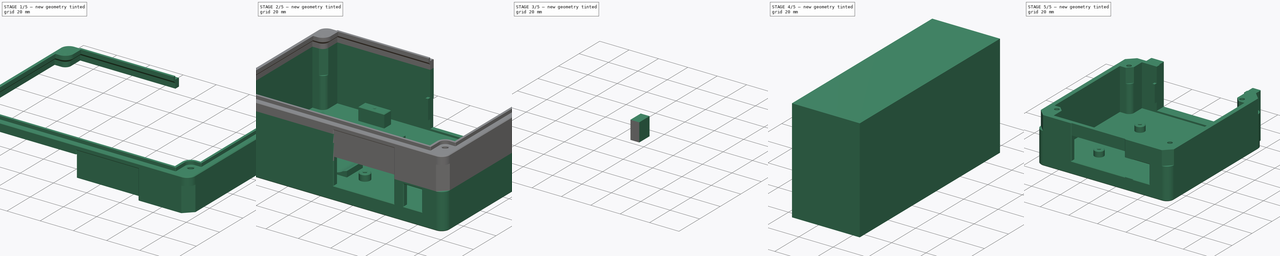
[diagram: build sequence overview — one tinted view per stage of 5, left to right]
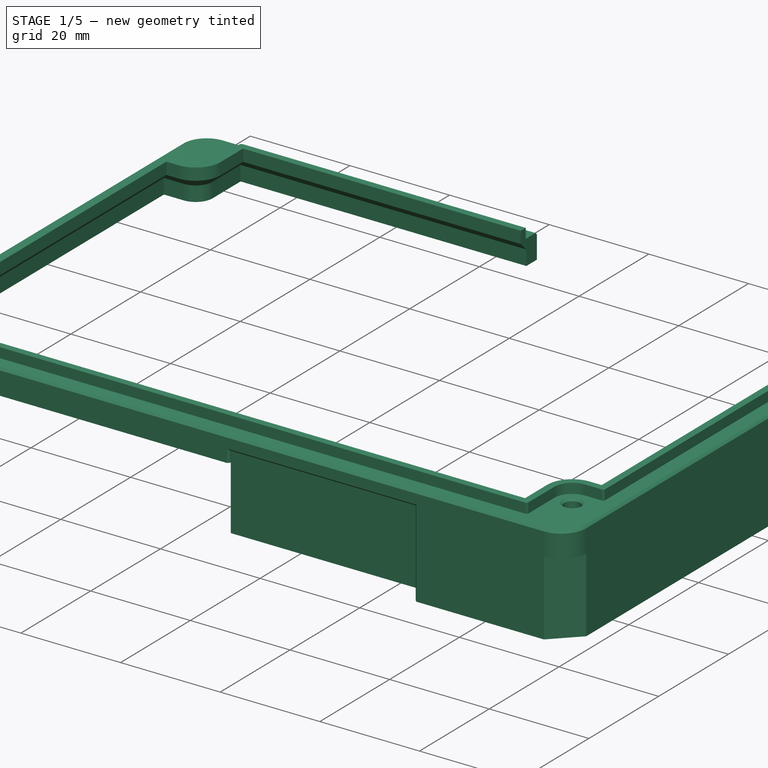
[diagram: stage 1 of 5 — iso view after this stage's code; geometry added in this stage tinted green]
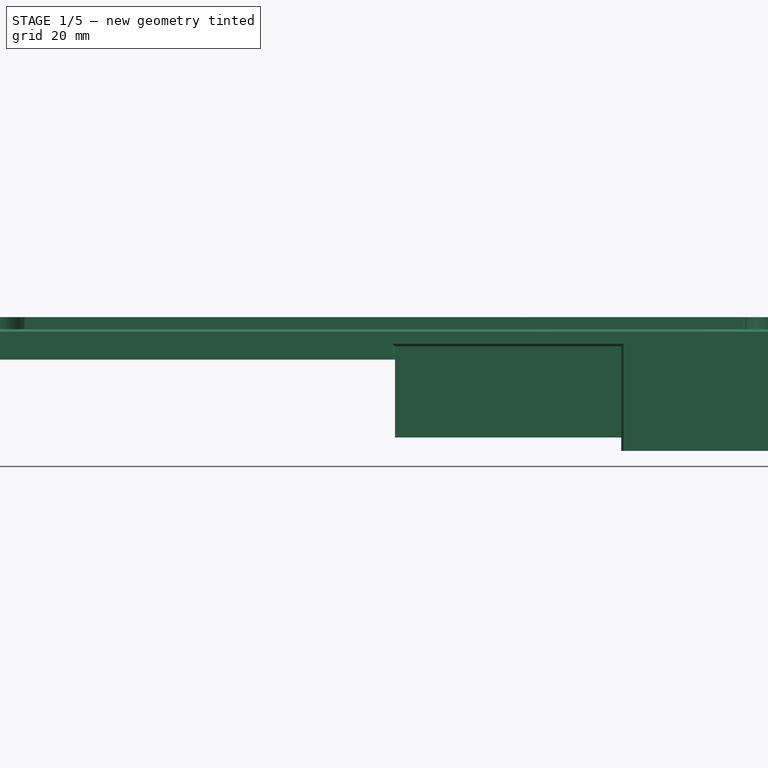
[diagram: stage 1 of 5 — front view after this stage's code; geometry added in this stage tinted green]
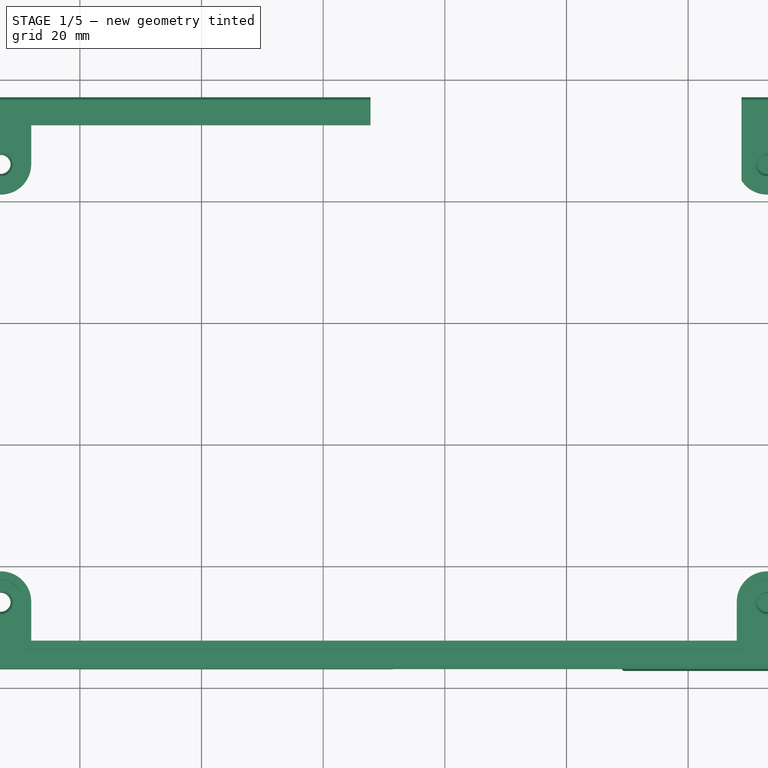
[diagram: stage 1 of 5 — top view after this stage's code; geometry added in this stage tinted green]
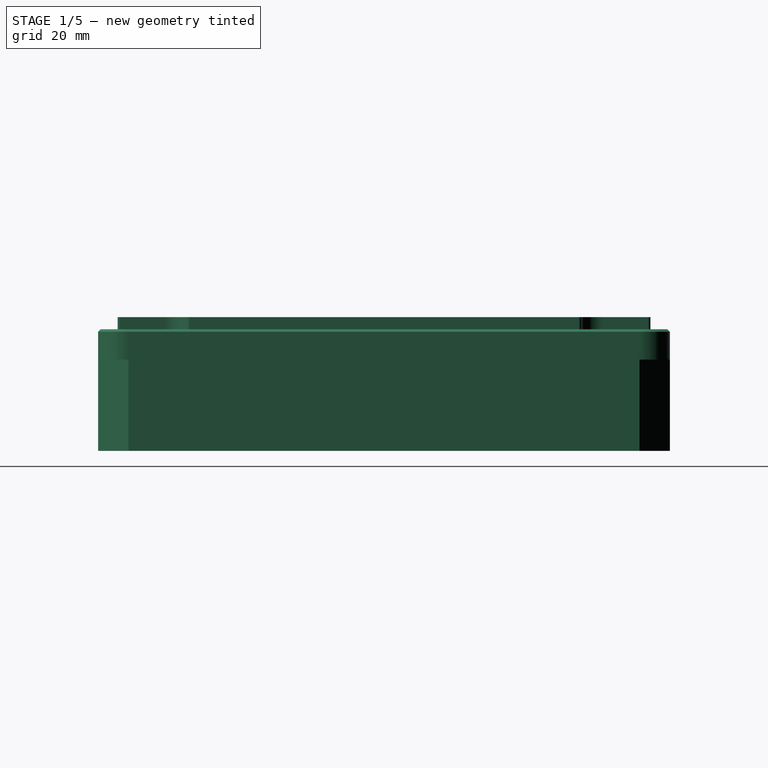
[diagram: stage 1 of 5 — right view after this stage's code; geometry added in this stage tinted green]
FCSTD DOCUMENT  (FreeCAD 0.18R16146 (Git))
Label: box Down
License: All rights reserved
LicenseURL: http://en.wikipedia.org/wiki/All_rights_reserved
objects: Sketcher::SketchObject×14, Part::Extrusion×13, Part::Fuse×8, Part::Cut×8, Part::FeaturePython×3, Part::Feature×1, Part::MultiCommon×1, Part::Chamfer×1, App::DocumentObjectGroup×1
note: 49 computed .brp shape members not serialized (recipe doc carries the construction recipe); baked Part::Feature solids carry a one-line shape summary decoded from their .brp

FEATURE [Part::Feature] Olinuxino_Lime2_SlimCase_v001_Bottom_v001001001_solid  label="Olinuxino_Lime2_SlimCase_v001_Bottom_v001002 (Solid)"
  shape: bbox 140 x 94 x 29 mm, 5554 faces (baked)
FEATURE [Part::Fuse] Fusion
FEATURE [Sketcher::SketchObject] Sketch
  MapMode = 5
  Placement = pos=(0,0,14.8) rot=(0,0,1;0rad)
  Support = -> [Cut001]
  sketch-geometry (4):
    g0: LineSegment StartX=11.2293 StartY=-3.06914 StartZ=0 EndX=72.2293 EndY=-3.06914 EndZ=0
    g1: LineSegment StartX=72.2293 StartY=-3.06914 StartZ=0 EndX=72.2293 EndY=30.102 EndZ=0
    g2: LineSegment StartX=72.2293 StartY=30.102 StartZ=0 EndX=11.2293 EndY=30.102 EndZ=0
    g3: LineSegment StartX=11.2293 StartY=30.102 StartZ=0 EndX=11.2293 EndY=-3.06914 EndZ=0
  constraints (7):
    c: Coincident(g0,g1)
    c: Coincident(g1,g2)
    c: Coincident(g2,g3)
    c: Coincident(g3,g0)
    c: Horizontal(g2)
    c: Vertical(g1)
    c: Vertical(g3)
FEATURE [Part::Extrusion] Extrude
  Base = -> Sketch
  Dir = (0,-20,0)
  DirMode = 0
  FaceMakerClass = Part::FaceMakerBullseye
  LengthFwd = 22
  LengthRev = 0
  Solid = true
  Symmetric = false
FEATURE [Part::Cut] Cut
  Base = -> Olinuxino_Lime2_SlimCase_v001_Bottom_v001001001_solid
  Tool = -> Extrude
FEATURE [Part::Cut] Cut001
  Base = -> Cut
FEATURE [Part::MultiCommon] Common
  Placement = pos=(0,0,15) rot=(0,0,1;0rad)
  Shapes = -> [Cut]
FEATURE [Sketcher::SketchObject] Sketch001
  ExternalGeometry = -> [Cut001]
  MapMode = 5
  Placement = pos=(0,0,14.8) rot=(0,0,1;0rad)
  Support = -> [Cut001]
  sketch-geometry (17):
    g0: LineSegment StartX=-31 StartY=-14.19 StartZ=0 EndX=-31 EndY=-16.79 EndZ=0
    g1: LineSegment StartX=-31 StartY=-16.79 StartZ=0 EndX=-30.6 EndY=-17.19 EndZ=0
    g2: LineSegment StartX=-30.6 StartY=-17.19 StartZ=0 EndX=-5 EndY=-17.19 EndZ=0
    g3: LineSegment StartX=-5 StartY=-17.19 StartZ=0 EndX=-2.7e-15 EndY=-12.19 EndZ=0
    g4: LineSegment StartX=-2.7e-15 StartY=-12.19 StartZ=0 EndX=1.5e-15 EndY=71.81 EndZ=0
    g5: LineSegment StartX=1.5e-15 StartY=71.81 StartZ=0 EndX=-5 EndY=76.81 EndZ=0
    g6: LineSegment StartX=-5 StartY=76.81 StartZ=0 EndX=-11.2293 EndY=76.81 EndZ=0
    g7: LineSegment StartX=-11.2293 StartY=76.81 StartZ=0 EndX=-11.2293 EndY=73.81 EndZ=0
    g8: LineSegment StartX=-11.2293 StartY=73.81 StartZ=0 EndX=-10.4 EndY=73.81 EndZ=0
    g9: LineSegment StartX=-10.4 StartY=73.81 StartZ=0 EndX=-10.4 EndY=65.81 EndZ=0
    g10: LineSegment StartX=-10.4 StartY=65.81 StartZ=0 EndX=-7 EndY=62.41 EndZ=0
    g11: LineSegment StartX=-7 StartY=62.41 StartZ=0 EndX=-3 EndY=62.41 EndZ=0
    g12: LineSegment StartX=-3 StartY=62.41 StartZ=0 EndX=-3 EndY=-2.79 EndZ=0
    g13: LineSegment StartX=-3 StartY=-2.79 StartZ=0 EndX=-7 EndY=-2.79 EndZ=0
    g14: LineSegment StartX=-7 StartY=-2.79 StartZ=0 EndX=-10.4 EndY=-6.19 EndZ=0
    g15: LineSegment StartX=-10.4 StartY=-6.19 StartZ=0 EndX=-10.4 EndY=-14.19 EndZ=0
    g16: LineSegment StartX=-10.4 StartY=-14.19 StartZ=0 EndX=-31 EndY=-14.19 EndZ=0
  constraints (34):
    c: Coincident(g0,g-13)
    c: Coincident(g0,g-14)
    c: Coincident(g1,g0)
    c: Coincident(g1,g-15)
    c: Coincident(g2,g1)
    c: Coincident(g2,g-15)
    c: Coincident(g3,g2)
    c: Coincident(g3,g-4)
    c: Coincident(g4,g3)
    c: Coincident(g4,g-4)
    c: Coincident(g5,g4)
    c: Coincident(g5,g-10)
    c: Coincident(g6,g5)
    c: Coincident(g6,g-11)
    c: Coincident(g7,g6)
    c: Coincident(g7,g-12)
    c: Coincident(g8,g7)
    c: Coincident(g8,g-12)
    c: Coincident(g9,g-12)
    c: Coincident(g9,g-8)
    c: Coincident(g10,g9)
    c: Coincident(g10,g-9)
    c: Coincident(g11,g10)
    c: Coincident(g11,g-9)
    c: Coincident(g12,g11)
    c: Coincident(g12,g-6)
    c: Coincident(g13,g12)
    c: Coincident(g13,g-5)
    c: Coincident(g14,g13)
    c: Coincident(g14,g-3)
    c: Coincident(g15,g14)
    c: Coincident(g15,g-7)
    c: Coincident(g16,g-7)
    c: Coincident(g16,g0)
FEATURE [Sketcher::SketchObject] Sketch002
  ExternalGeometry = -> [Cut001]
  MapMode = 5
  Placement = pos=(0,0,14.8) rot=(0,0,1;0rad)
  Support = -> [Cut001]
  sketch-geometry (17):
    g0: LineSegment StartX=-68.2 StartY=-16.79 StartZ=0 EndX=-68.6 EndY=-17.19 EndZ=0
    g1: LineSegment StartX=-68.6 StartY=-17.19 StartZ=0 EndX=-135 EndY=-17.19 EndZ=0
    g2: LineSegment StartX=-135 StartY=-17.19 StartZ=0 EndX=-140 EndY=-12.19 EndZ=0
    g3: LineSegment StartX=-140 StartY=-12.19 StartZ=0 EndX=-140 EndY=71.81 EndZ=0
    g4: LineSegment StartX=-140 StartY=71.81 StartZ=0 EndX=-135 EndY=76.81 EndZ=0
    g5: LineSegment StartX=-135 StartY=76.81 StartZ=0 EndX=-72.2293 EndY=76.81 EndZ=0
    g6: LineSegment StartX=-72.2293 StartY=76.81 StartZ=0 EndX=-72.2293 EndY=73.81 EndZ=0
    g7: LineSegment StartX=-72.2293 StartY=73.81 StartZ=0 EndX=-129.6 EndY=73.81 EndZ=0
    g8: LineSegment StartX=-129.6 StartY=73.81 StartZ=0 EndX=-129.6 EndY=65.81 EndZ=0
    g9: LineSegment StartX=-129.6 StartY=65.81 StartZ=0 EndX=-133 EndY=62.41 EndZ=0
    g10: LineSegment StartX=-133 StartY=62.41 StartZ=0 EndX=-137 EndY=62.41 EndZ=0
    g11: LineSegment StartX=-137 StartY=62.41 StartZ=0 EndX=-137 EndY=-2.79 EndZ=0
    g12: LineSegment StartX=-137 StartY=-2.79 StartZ=0 EndX=-133 EndY=-2.79 EndZ=0
    g13: LineSegment StartX=-133 StartY=-2.79 StartZ=0 EndX=-129.6 EndY=-6.19 EndZ=0
    g14: LineSegment StartX=-129.6 StartY=-6.19 StartZ=0 EndX=-129.6 EndY=-14.19 EndZ=0
    g15: LineSegment StartX=-129.6 StartY=-14.19 StartZ=0 EndX=-68.2 EndY=-14.19 EndZ=0
    g16: LineSegment StartX=-68.2 StartY=-14.19 StartZ=0 EndX=-68.2 EndY=-16.79 EndZ=0
  constraints (34):
    c: Coincident(g0,g-4)
    c: Coincident(g0,g-5)
    c: Coincident(g1,g0)
    c: Coincident(g1,g-5)
    c: Coincident(g2,g1)
    c: Coincident(g2,g-9)
    c: Coincident(g3,g2)
    c: Coincident(g3,g-9)
    c: Coincident(g4,g3)
    c: Coincident(g4,g-10)
    c: Coincident(g5,g4)
    c: Coincident(g5,g-12)
    c: Coincident(g6,g5)
    c: Coincident(g6,g-11)
    c: Coincident(g7,g6)
    c: Coincident(g7,g-15)
    c: Coincident(g8,g7)
    c: Coincident(g8,g-15)
    c: Coincident(g9,g8)
    c: Coincident(g9,g-14)
    c: Coincident(g10,g-14)
    c: Coincident(g10,g-14)
    c: Coincident(g11,g10)
    c: Coincident(g11,g-13)
    c: Coincident(g12,g11)
    c: Coincident(g12,g-8)
    c: Coincident(g13,g12)
    c: Coincident(g13,g-7)
    c: Coincident(g14,g13)
    c: Coincident(g14,g-7)
    c: Coincident(g15,g-7)
    c: Coincident(g15,g-6)
    c: Coincident(g16,g15)
    c: Coincident(g16,g0)
FEATURE [Part::Extrusion] Extrude002
  Base = -> Sketch002
  Dir = (0,0,1)
  DirMode = 2
  FaceMakerClass = Part::FaceMakerBullseye
  LengthFwd = 10
  LengthRev = 0
  Solid = true
  Symmetric = false
FEATURE [Sketcher::SketchObject] Sketch003
  ExternalGeometry = -> [Extrude002,Common]
  MapMode = 5
  Placement = pos=(0,-14.19,0) rot=(0,0.707107,0.707107;3.14159rad)
  Support = -> [Cut001]
  sketch-geometry (5):
    g0: GeomPoint X=68.2 Y=17 Z=0
    g1: LineSegment StartX=31 StartY=32 StartZ=0 EndX=68.2 EndY=32 EndZ=0
    g2: LineSegment StartX=68.2 StartY=32 StartZ=0 EndX=68.2 EndY=17 EndZ=0
    g3: LineSegment StartX=68.2 StartY=17 StartZ=0 EndX=31 EndY=17 EndZ=0
    g4: LineSegment StartX=31 StartY=17 StartZ=0 EndX=31 EndY=32 EndZ=0
  constraints (12):
    c: PointOnObject(g0,g-3)
    c: DistanceY(g-3,g0) = 2.2
    c: Coincident(g1,g2)
    c: Coincident(g2,g3)
    c: Coincident(g3,g4)
    c: Coincident(g4,g1)
    c: Horizontal(g1)
    c: Horizontal(g3)
    c: Vertical(g2)
    c: Vertical(g4)
    c: Coincident(g1,g-4)
    c: Coincident(g2,g0)
FEATURE [Part::Extrusion] Extrude004
  Base = -> Sketch003
  Dir = (0,1,-2e-16)
  DirMode = 2
  FaceMakerClass = Part::FaceMakerBullseye
  LengthFwd = -2.5
  LengthRev = 0
  Solid = true
  Symmetric = false
FEATURE [Part::Fuse] Fusion001
  Base = -> Common
  Tool = -> Fusion
FEATURE [Part::Fuse] Fusion002
  Base = -> Extrude004
  Tool = -> Fusion001
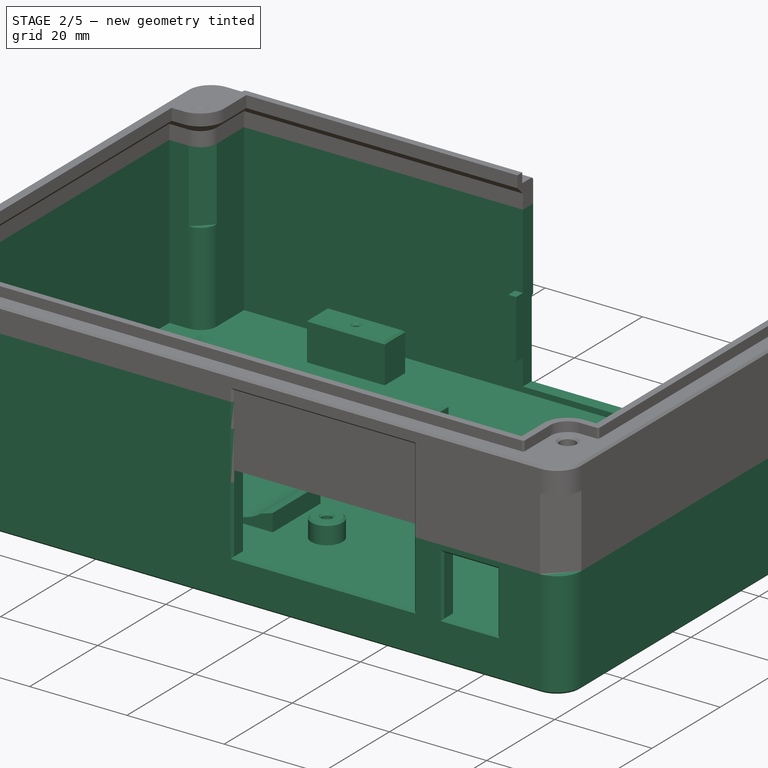
[diagram: stage 2 of 5 — iso view after this stage's code; geometry added in this stage tinted green]
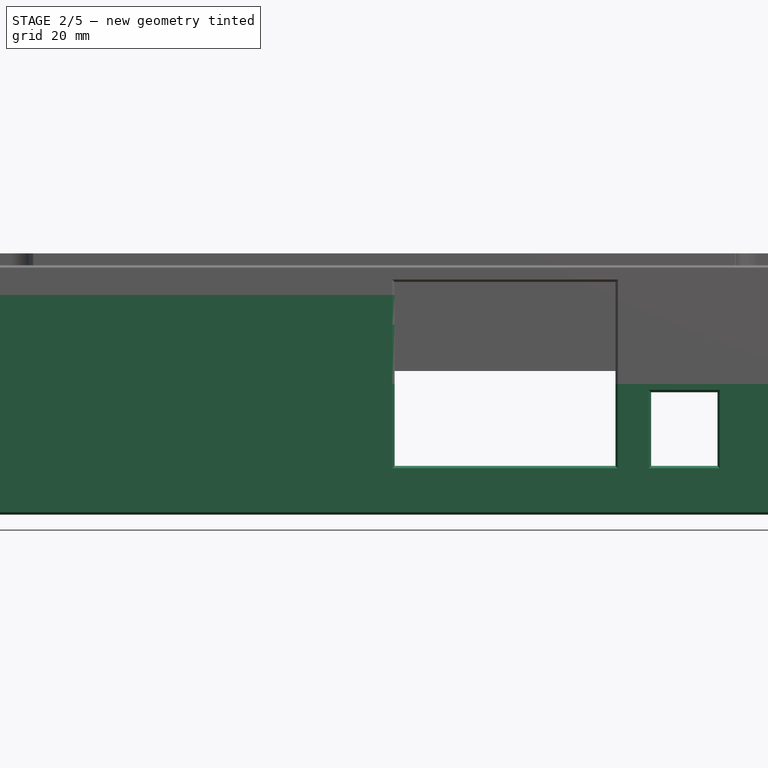
[diagram: stage 2 of 5 — front view after this stage's code; geometry added in this stage tinted green]
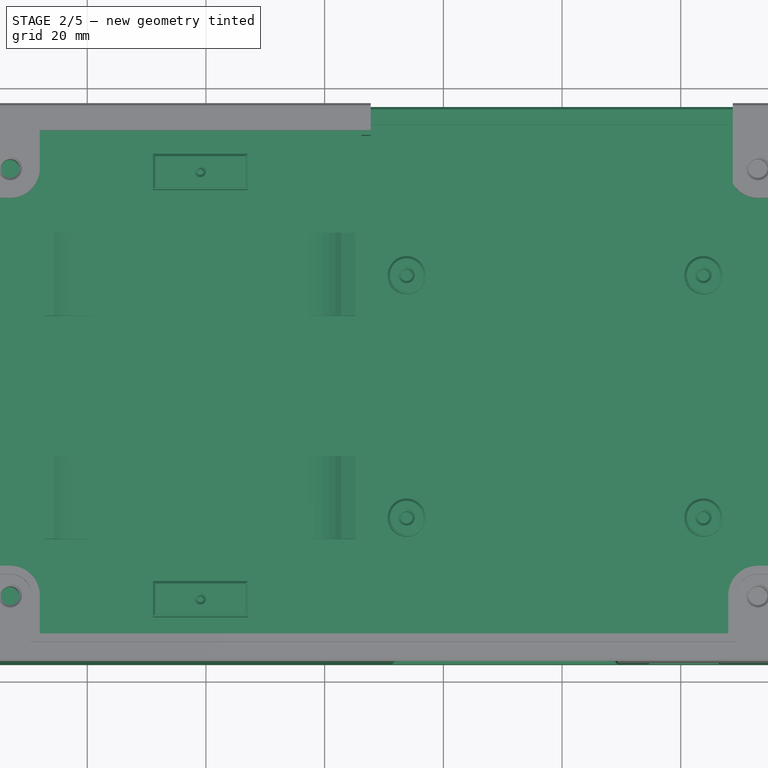
[diagram: stage 2 of 5 — top view after this stage's code; geometry added in this stage tinted green]
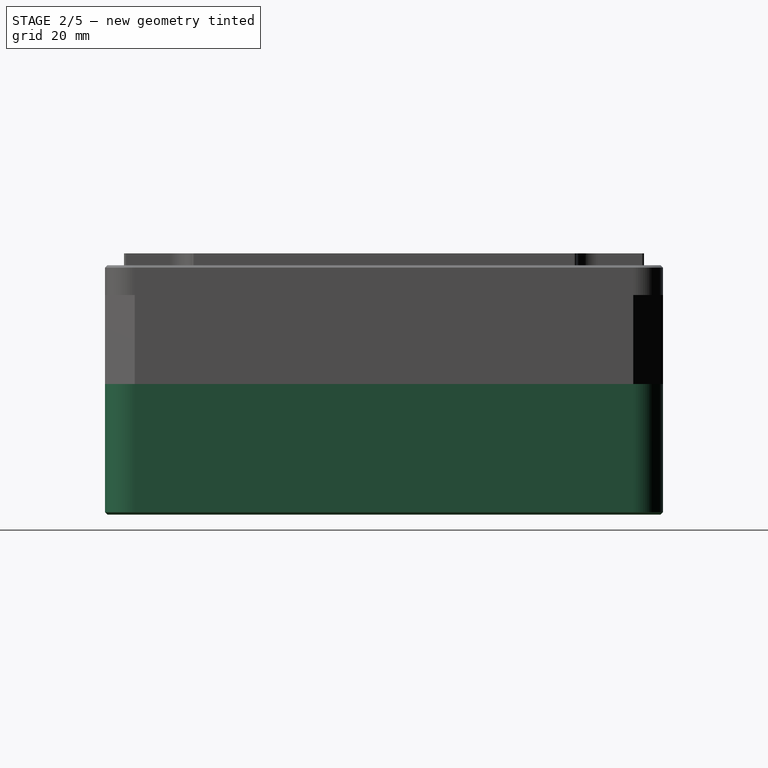
[diagram: stage 2 of 5 — right view after this stage's code; geometry added in this stage tinted green]
FEATURE [Part::Extrusion] Extrude003
  Base = -> Sketch002
  Dir = (0,0,1)
  DirMode = 2
  FaceMakerClass = Part::FaceMakerBullseye
  LengthFwd = 15
  LengthRev = 0
  Solid = true
  Symmetric = false
FEATURE [Sketcher::SketchObject] Sketch004
  MapMode = 5
  Placement = pos=(0,0,34.8) rot=(0,0,1;0rad)
  Support = -> [Common]
  sketch-geometry (2):
    g0: Circle CenterX=-133.001 CenterY=-6.18969 CenterZ=0 NormalX=0 NormalY=0 NormalZ=1 AngleXU=0 Radius=1.56624
    g1: Circle CenterX=-132.993 CenterY=65.8154 CenterZ=0 NormalX=0 NormalY=0 NormalZ=1 AngleXU=0 Radius=1.56087
FEATURE [Part::Extrusion] Extrude005
  Base = -> Sketch004
  Dir = (0,0,1)
  DirMode = 2
  FaceMakerClass = Part::FaceMakerBullseye
  LengthFwd = -40
  LengthRev = 0
  Solid = true
  Symmetric = false
FEATURE [Part::Cut] Cut002
  Base = -> Extrude003
  Tool = -> Extrude005
FEATURE [Part::Fuse] Fusion003
  Base = -> Extrude002
  Tool = -> Fusion002
FEATURE [Part::Fuse] Fusion004
  Base = -> Cut002
  Tool = -> Fusion003
FEATURE [Part::Fuse] Fusion005
  Base = -> Cut001
  Tool = -> Fusion004
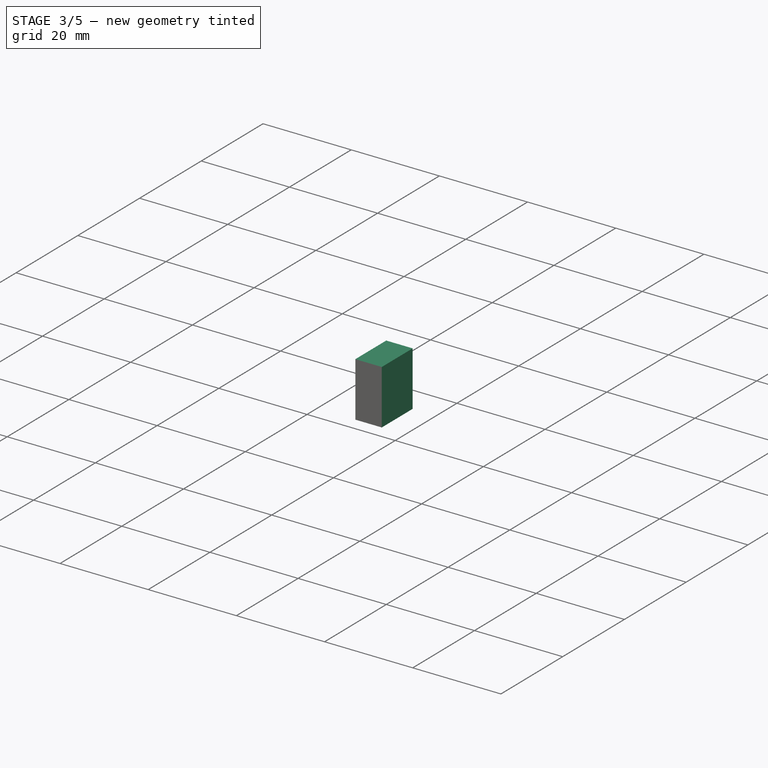
[diagram: stage 3 of 5 — iso view after this stage's code; geometry added in this stage tinted green]
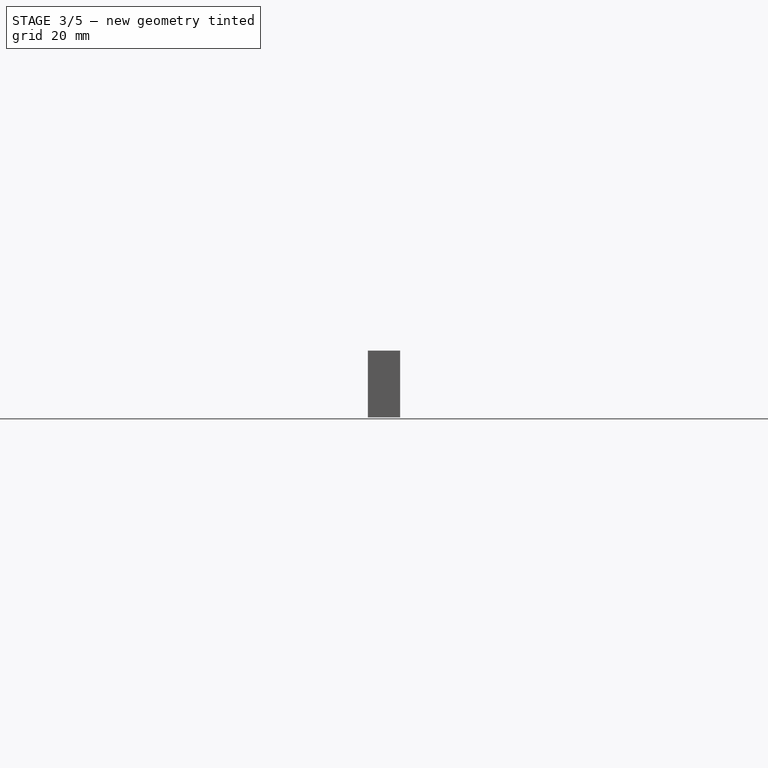
[diagram: stage 3 of 5 — front view after this stage's code; geometry added in this stage tinted green]
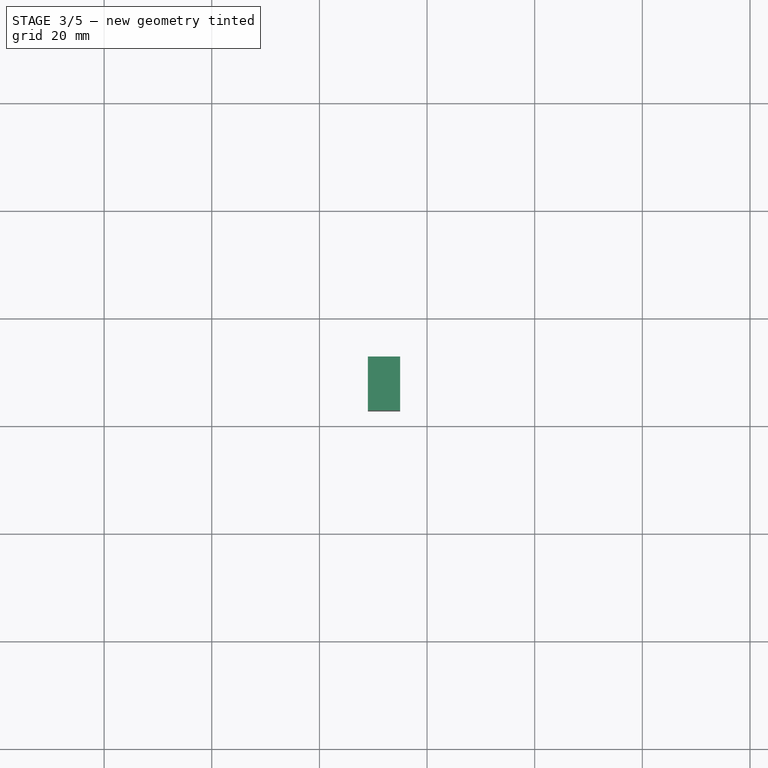
[diagram: stage 3 of 5 — top view after this stage's code; geometry added in this stage tinted green]
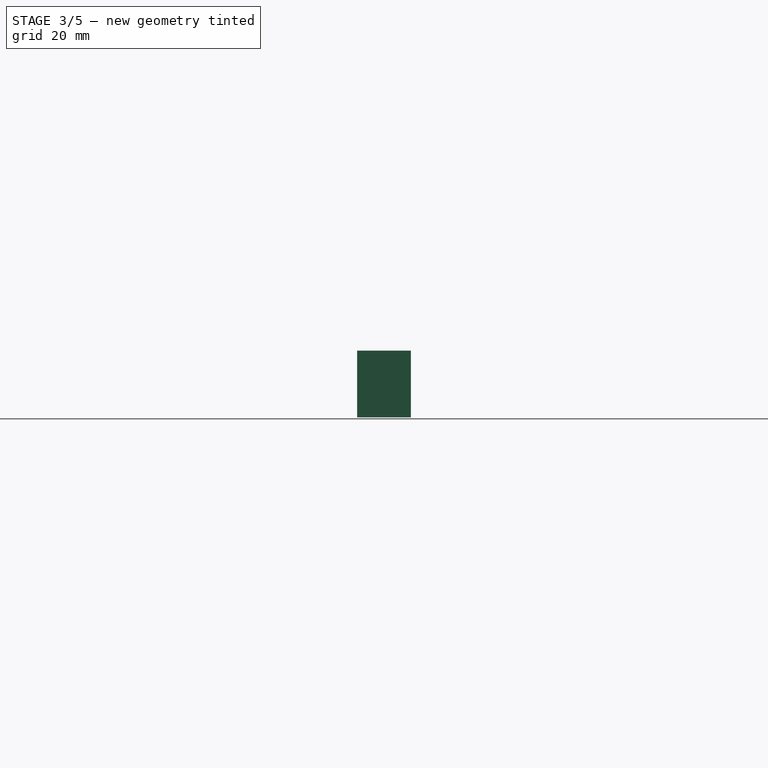
[diagram: stage 3 of 5 — right view after this stage's code; geometry added in this stage tinted green]
FEATURE [Sketcher::SketchObject] Sketch005
  MapMode = 5
  Placement = pos=(0,76.81,0) rot=(0,0.707107,0.707107;3.14159rad)
  Support = -> [Cut001]
  sketch-geometry (8):
    g0: LineSegment StartX=5.04967 StartY=34.337 StartZ=0 EndX=10.794 EndY=34.337 EndZ=0
    g1: LineSegment StartX=10.794 StartY=-3.50817 StartZ=0 EndX=10.794 EndY=34.337 EndZ=0
    g2: LineSegment StartX=10.794 StartY=-3.50817 StartZ=0 EndX=72.7152 EndY=-3.50817 EndZ=0
    g3: LineSegment StartX=72.7152 StartY=-3.50817 StartZ=0 EndX=72.7152 EndY=34.3191 EndZ=0
    g4: LineSegment StartX=72.7152 StartY=34.3191 StartZ=0 EndX=81.5889 EndY=34.3191 EndZ=0
    g5: LineSegment StartX=81.5889 StartY=34.3191 StartZ=0 EndX=81.5889 EndY=-6.7944 EndZ=0
    g6: LineSegment StartX=5.04967 StartY=-6.7944 StartZ=0 EndX=81.5889 EndY=-6.7944 EndZ=0
    g7: LineSegment StartX=5.04967 StartY=-6.7944 StartZ=0 EndX=5.04967 EndY=34.337 EndZ=0
  constraints (16):
    c: Horizontal(g0)
    c: Coincident(g1,g0)
    c: Vertical(g1)
    c: Coincident(g2,g1)
    c: Horizontal(g2)
    c: Coincident(g3,g2)
    c: Vertical(g3)
    c: Coincident(g4,g3)
    c: Horizontal(g4)
    c: Coincident(g5,g4)
    c: Vertical(g5)
    c: Coincident(g6,g5)
    c: Horizontal(g6)
    c: Coincident(g7,g6)
    c: Coincident(g7,g0)
    c: Vertical(g7)
FEATURE [Part::Extrusion] Extrude006
  Base = -> Sketch005
  Dir = (0,1,-2e-16)
  DirMode = 2
  FaceMakerClass = Part::FaceMakerBullseye
  LengthFwd = 5
  LengthRev = 0
  Solid = true
  Symmetric = false
FEATURE [Part::Fuse] Fusion006
  Base = -> Extrude006
  Tool = -> Fusion005
FEATURE [Sketcher::SketchObject] Sketch006
  MapMode = 5
  Placement = pos=(0,0,34.8) rot=(0,0,1;0rad)
  Support = -> [Fusion006]
  sketch-geometry (4):
    g0: Circle CenterX=-7.00393 CenterY=-6.19158 CenterZ=0 NormalX=0 NormalY=0 NormalZ=1 AngleXU=0 Radius=1.58493
    g1: Circle CenterX=-6.9983 CenterY=65.8065 CenterZ=0 NormalX=0 NormalY=0 NormalZ=1 AngleXU=0 Radius=1.58772
    g2: Circle CenterX=-132.999 CenterY=-6.19241 CenterZ=0 NormalX=0 NormalY=0 NormalZ=1 AngleXU=0 Radius=1.58151
    g3: Circle CenterX=-132.997 CenterY=65.8126 CenterZ=0 NormalX=0 NormalY=0 NormalZ=1 AngleXU=0 Radius=1.58168
FEATURE [Sketcher::SketchObject] Sketch007
  MapMode = 5
  Placement = pos=(0,0,34.8) rot=(0,0,1;0rad)
  Support = -> [Fusion006]
  sketch-geometry (1):
    g0: Circle CenterX=-7.00393 CenterY=-6.19158 CenterZ=0 NormalX=0 NormalY=0 NormalZ=1 AngleXU=0 Radius=1.58493
FEATURE [Part::Extrusion] Extrude007
  Base = -> Sketch006
  Dir = (0,0,1)
  DirMode = 2
  FaceMakerClass = Part::FaceMakerBullseye
  LengthFwd = -60
  LengthRev = 0
  Solid = true
  Symmetric = false
FEATURE [Part::Cut] Cut003
  Base = -> Fusion006
  Tool = -> Extrude007
FEATURE [Part::Chamfer] Chamfer
  Base = -> Cut003
  Edges = 8 edges r=0.3: [Edge4,Edge10,Edge16,Edge22,Edge23,Edge24,Edge25,Edge26]
FEATURE [Sketcher::SketchObject] Sketch008
  ExternalGeometry = -> [Chamfer]
  MapMode = 5
  Placement = pos=(0,-17.19,0) rot=(1,0,0;1.5708rad)
  Support = -> [Chamfer]
  sketch-geometry (4):
    g0: LineSegment StartX=-25 StartY=13.4 StartZ=0 EndX=-31 EndY=13.4 EndZ=0
    g1: LineSegment StartX=-31 StartY=13.4 StartZ=0 EndX=-31 EndY=1 EndZ=0
    g2: LineSegment StartX=-31 StartY=1 StartZ=0 EndX=-25 EndY=1 EndZ=0
    g3: LineSegment StartX=-25 StartY=1 StartZ=0 EndX=-25 EndY=13.4 EndZ=0
  constraints (10):
    c: Coincident(g0,g1)
    c: Coincident(g1,g2)
    c: Coincident(g2,g3)
    c: Coincident(g3,g0)
    c: Horizontal(g0)
    c: Horizontal(g2)
    c: Vertical(g1)
    c: Coincident(g0,g-5)
    c: PointOnObject(g1,g-4)
    c: Coincident(g2,g-5)
FEATURE [Part::Extrusion] Extrude008
  Base = -> Sketch008
  Dir = (0,-1,2e-16)
  DirMode = 2
  FaceMakerClass = Part::FaceMakerBullseye
  LengthFwd = -10
  LengthRev = 0
  Solid = true
  Symmetric = false
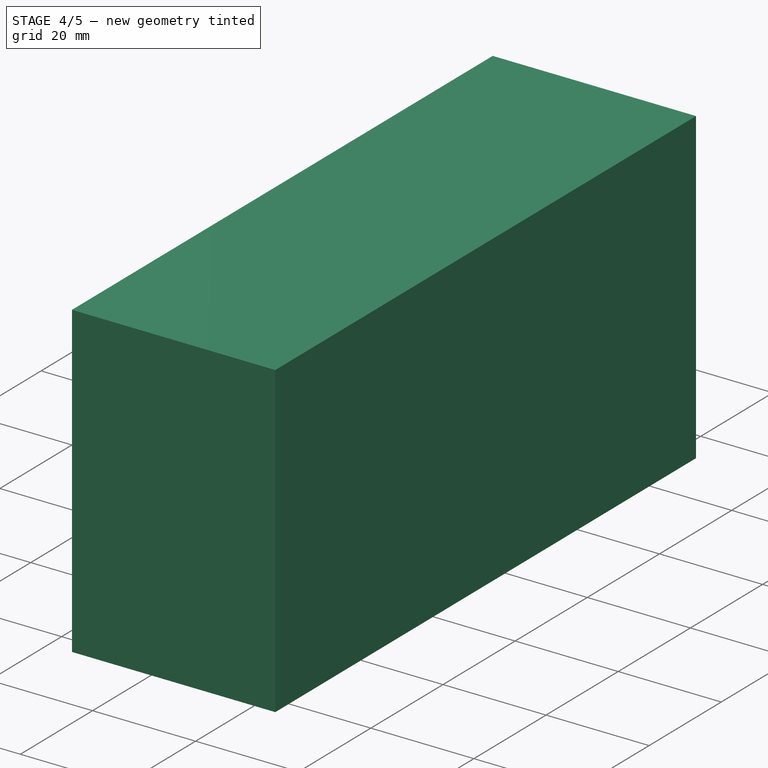
[diagram: stage 4 of 5 — iso view after this stage's code; geometry added in this stage tinted green]
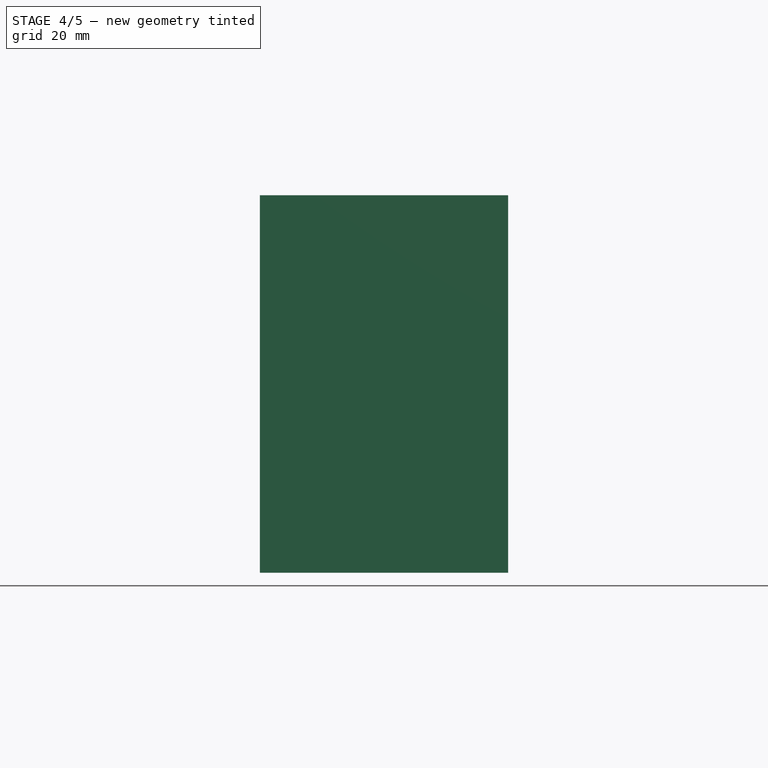
[diagram: stage 4 of 5 — front view after this stage's code; geometry added in this stage tinted green]
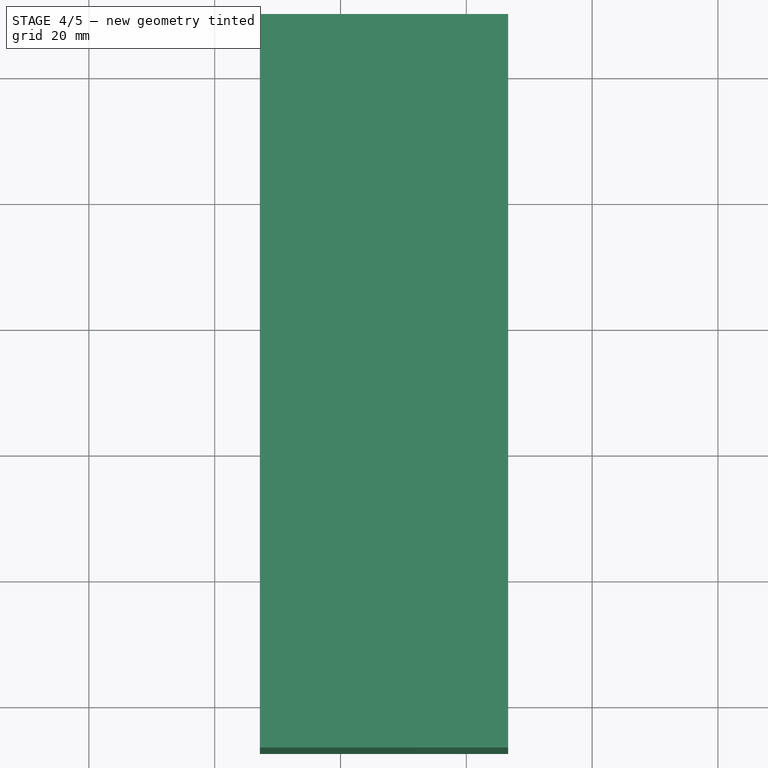
[diagram: stage 4 of 5 — top view after this stage's code; geometry added in this stage tinted green]
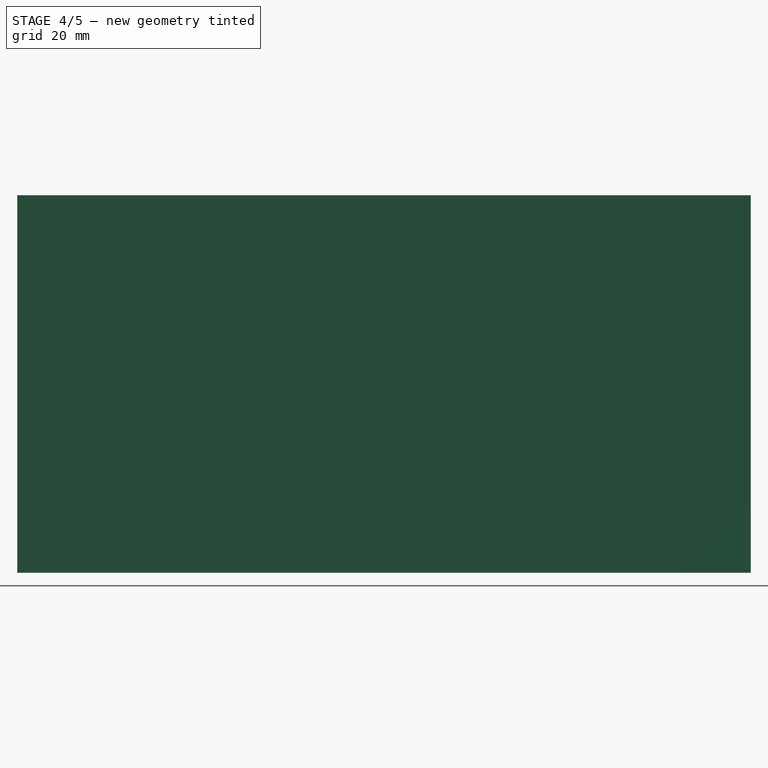
[diagram: stage 4 of 5 — right view after this stage's code; geometry added in this stage tinted green]
FEATURE [Part::Cut] Cut004
  Base = -> Chamfer
  Tool = -> Extrude008
FEATURE [Sketcher::SketchObject] Sketch009
  MapMode = 5
  Placement = pos=(0,0,-4.2) rot=(0,0,1;0rad)
  Support = -> [Cut004]
  sketch-geometry (4):
    g0: LineSegment StartX=-88.1595 StartY=59.6742 StartZ=0 EndX=-72.1713 EndY=59.6742 EndZ=0
    g1: LineSegment StartX=-72.1713 StartY=59.6742 StartZ=0 EndX=-72.1713 EndY=-1.42924 EndZ=0
    g2: LineSegment StartX=-72.1713 StartY=-1.42924 StartZ=0 EndX=-88.1595 EndY=-1.42924 EndZ=0
    g3: LineSegment StartX=-88.1595 StartY=-1.42924 StartZ=0 EndX=-88.1595 EndY=59.6742 EndZ=0
  constraints (8):
    c: Coincident(g0,g1)
    c: Coincident(g1,g2)
    c: Coincident(g2,g3)
    c: Coincident(g3,g0)
    c: Horizontal(g0)
    c: Horizontal(g2)
    c: Vertical(g1)
    c: Vertical(g3)
FEATURE [Part::Extrusion] Extrude009
  Base = -> Sketch009
  Dir = (0,0,1)
  DirMode = 2
  FaceMakerClass = Part::FaceMakerBullseye
  LengthFwd = 10
  LengthRev = 0
  Solid = true
  Symmetric = false
FEATURE [Part::Cut] Cut005
  Base = -> Cut004
  Tool = -> Extrude009
FEATURE [Sketcher::SketchObject] Sketch010
  ExternalGeometry = -> [Cut005]
  MapMode = 5
  Placement = pos=(0,0,36.8) rot=(0,0,1;0rad)
  Support = -> [Cut005]
  sketch-geometry (4):
    g0: LineSegment StartX=-81.5889 StartY=76.81 StartZ=0 EndX=-128 EndY=76.81 EndZ=0
    g1: LineSegment StartX=-128 StartY=76.81 StartZ=0 EndX=-128 EndY=-59.8412 EndZ=0
    g2: LineSegment StartX=-128 StartY=-59.8412 StartZ=0 EndX=-81.5889 EndY=-59.8412 EndZ=0
    g3: LineSegment StartX=-81.5889 StartY=-59.8412 StartZ=0 EndX=-81.5889 EndY=76.81 EndZ=0
  constraints (10):
    c: Coincident(g0,g1)
    c: Coincident(g1,g2)
    c: Coincident(g2,g3)
    c: Coincident(g3,g0)
    c: Horizontal(g0)
    c: Horizontal(g2)
    c: Vertical(g1)
    c: Vertical(g3)
    c: Coincident(g0,g-3)
    c: PointOnObject(g-4,g1)
FEATURE [Part::Extrusion] Extrude010
  Base = -> Sketch010
  Dir = (0,0,1)
  DirMode = 2
  FaceMakerClass = Part::FaceMakerBullseye
  LengthFwd = -60
  LengthRev = 0
  Solid = true
  Symmetric = false
FEATURE [Part::Cut] Cut006
  Base = -> Cut005
  Tool = -> Extrude010
FEATURE [Sketcher::SketchObject] Sketch011
  MapMode = 5
  Placement = pos=(0,0,36.8) rot=(0,0,1;0rad)
  Support = -> [Cut006]
  sketch-geometry (4):
    g0: LineSegment StartX=-152.814 StartY=89.2166 StartZ=0 EndX=-113.356 EndY=89.2166 EndZ=0
    g1: LineSegment StartX=-113.356 StartY=89.2166 StartZ=0 EndX=-113.356 EndY=-27.3951 EndZ=0
    g2: LineSegment StartX=-113.356 StartY=-27.3951 StartZ=0 EndX=-152.814 EndY=-27.3951 EndZ=0
    g3: LineSegment StartX=-152.814 StartY=-27.3951 StartZ=0 EndX=-152.814 EndY=89.2166 EndZ=0
  constraints (8):
    c: Coincident(g0,g1)
    c: Coincident(g1,g2)
    c: Coincident(g2,g3)
    c: Coincident(g3,g0)
    c: Horizontal(g0)
    c: Horizontal(g2)
    c: Vertical(g1)
    c: Vertical(g3)
FEATURE [Part::Extrusion] Extrude011
  Base = -> Sketch011
  Dir = (0,0,1)
  DirMode = 2
  FaceMakerClass = Part::FaceMakerBullseye
  LengthFwd = -60
  LengthRev = 0
  Solid = true
  Symmetric = false
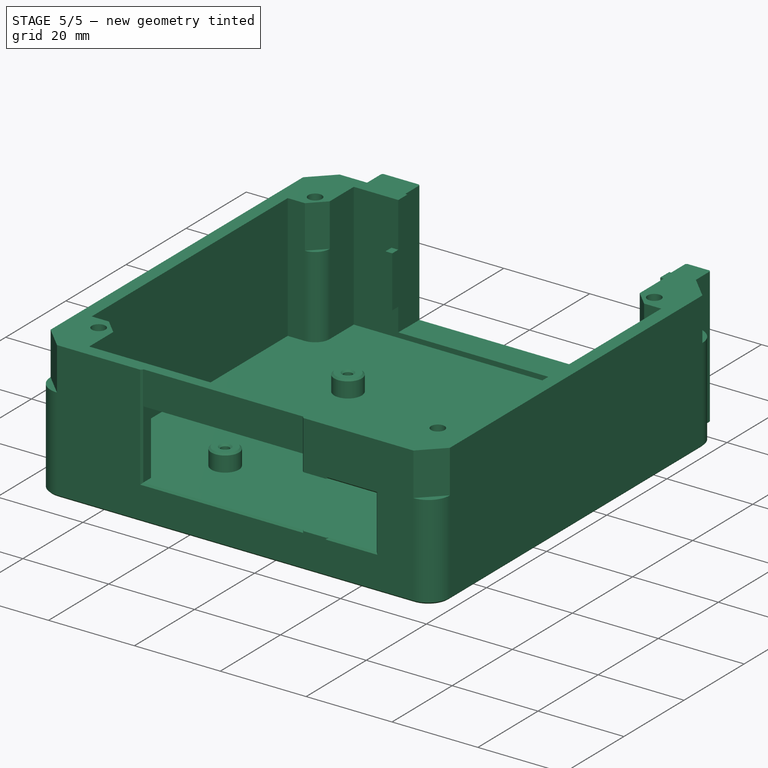
[diagram: stage 5 of 5 — iso view after this stage's code; geometry added in this stage tinted green]
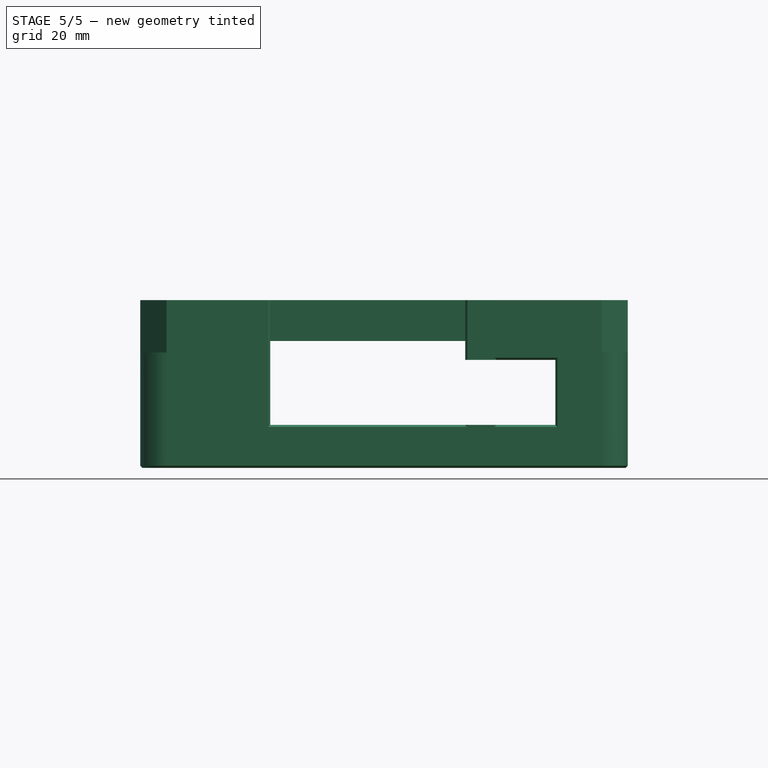
[diagram: stage 5 of 5 — front view after this stage's code; geometry added in this stage tinted green]
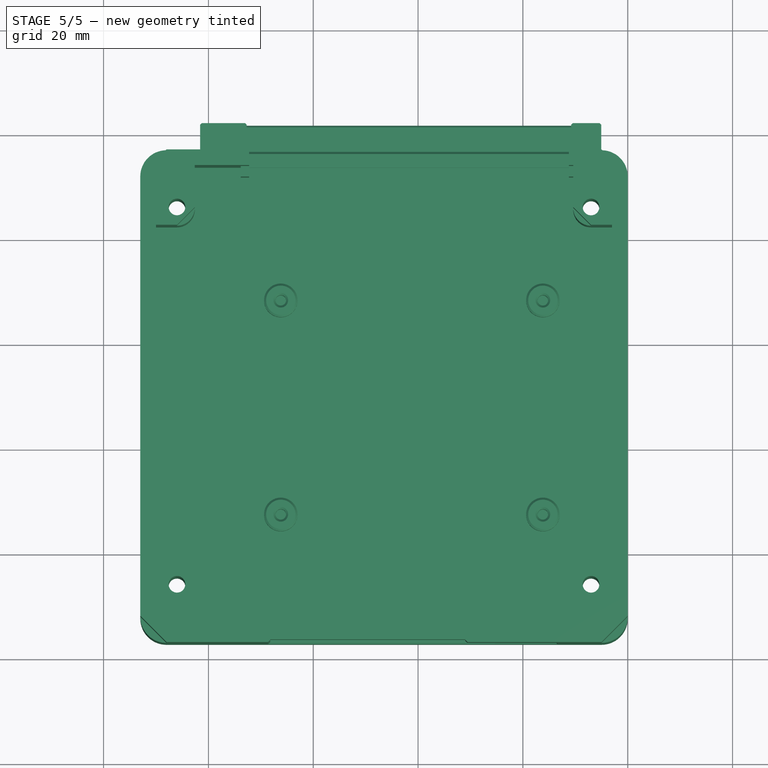
[diagram: stage 5 of 5 — top view after this stage's code; geometry added in this stage tinted green]
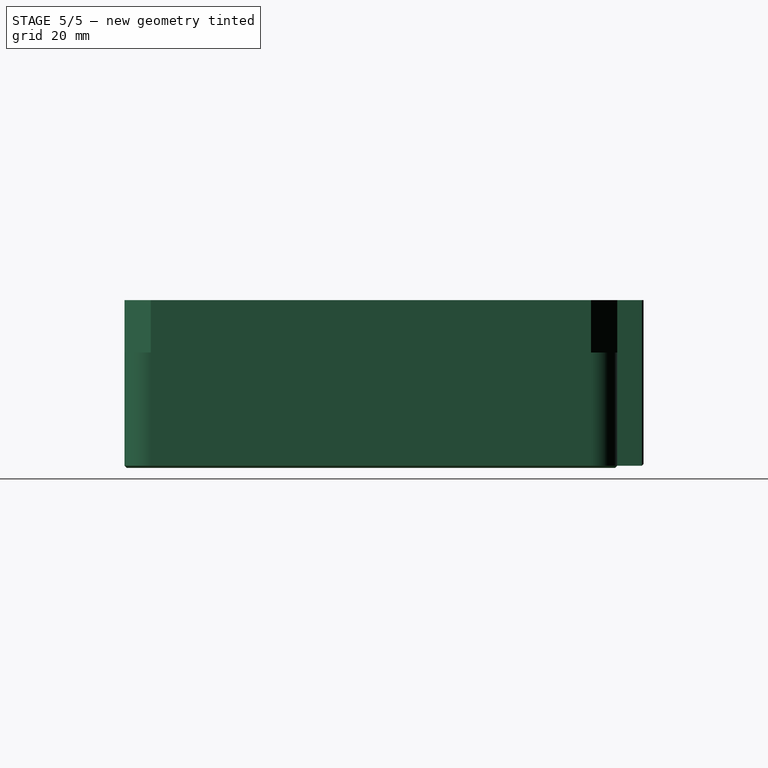
[diagram: stage 5 of 5 — right view after this stage's code; geometry added in this stage tinted green]
FEATURE [Part::FeaturePython] Slice  # WARN: FeaturePython — macro-defined, semantics opaque (R4)
  Base = -> Cut006
  Mode = 1
  Tolerance = 0
  Tools = -> [Extrude011]
FEATURE [App::DocumentObjectGroup] GrExplode_Slice  label="Exploded Slice"
  Group = -> [Sketch012,Sketch013,Cut007]
FEATURE [Part::FeaturePython] Slice_child0  label="Slice.0"  # WARN: FeaturePython — macro-defined, semantics opaque (R4)
  Base = -> Slice
  FilterType = 1
  Invert = false
  OverrideMaxVal = 0
  WindowFrom = 80
  WindowTo = 100
  items = 0
FEATURE [Part::FeaturePython] Slice_child1  label="Slice.1"  # WARN: FeaturePython — macro-defined, semantics opaque (R4)
  Base = -> Slice
  FilterType = 1
  Invert = false
  OverrideMaxVal = 0
  Placement = pos=(47,0,0) rot=(0,0,1;0rad)
  WindowFrom = 80
  WindowTo = 100
  items = 1
FEATURE [Part::Fuse] Fusion007
  Base = -> Slice_child0
  Tool = -> Slice_child1
FEATURE [Sketcher::SketchObject] Sketch012
  ExternalGeometry = -> [Fusion007]
  MapMode = 5
  Placement = pos=(-2.7e-15,0,0) rot=(0.57735,0.57735,0.57735;2.0944rad)
  Support = -> [Fusion007]
  sketch-geometry (2):
    g0: LineSegment StartX=-12.19 StartY=14.8 StartZ=0 EndX=81.81 EndY=14.8 EndZ=0
    g1: LineSegment StartX=-12.19 StartY=14.8 StartZ=0 EndX=-21.3278 EndY=14.8 EndZ=0
  constraints (5):
    c: Coincident(g0,g-3)
    c: Horizontal(g0)
    c: PointOnObject(g0,g-4)
    c: Coincident(g1,g0)
    c: Horizontal(g1)
FEATURE [Part::Extrusion] Extrude012
  Base = -> Sketch012
  Dir = (1,0,0)
  DirMode = 2
  FaceMakerClass = Part::FaceMakerBullseye
  LengthFwd = -110
  LengthRev = 0
  Placement = pos=(0,0,10) rot=(0,0,1;0rad)
  Solid = false
  Symmetric = false
FEATURE [Part::Extrusion] Extrude015
  Base = -> Extrude012
  Dir = (0,0,-1)
  DirMode = 2
  FaceMakerClass = Part::FaceMakerBullseye
  LengthFwd = -60
  LengthRev = 0
  Solid = false
  Symmetric = false
FEATURE [Sketcher::SketchObject] Sketch013
  ExternalGeometry = -> [Fusion007]
  MapMode = 5
  Placement = pos=(0,0,36.8) rot=(0,0,1;0rad)
  Support = -> [Fusion007]
  sketch-geometry (15):
    g0: LineSegment StartX=-89.2298 StartY=61.4405 StartZ=0 EndX=-85.0918 EndY=61.6943 EndZ=0
    g1: LineSegment StartX=-85.0918 StartY=61.6943 StartZ=0 EndX=-81.5902 EndY=64.5362 EndZ=0
    g2: LineSegment StartX=-81.5902 StartY=64.5362 StartZ=0 EndX=-81.2695 EndY=73.3492 EndZ=0
    g3: LineSegment StartX=-81.2695 StartY=73.3492 StartZ=0 EndX=-81 EndY=73.61 EndZ=0
    g4: LineSegment StartX=-81 StartY=73.61 StartZ=0 EndX=-11.2293 EndY=73.61 EndZ=0
    g5: LineSegment StartX=-11.2293 StartY=73.61 StartZ=0 EndX=-10.8752 EndY=72.959 EndZ=0
    g6: LineSegment StartX=-10.8752 StartY=72.959 StartZ=0 EndX=-10.8752 EndY=62.9365 EndZ=0
    g7: LineSegment StartX=-10.8752 StartY=62.9365 StartZ=0 EndX=-3.79678 EndY=60.805 EndZ=0
    g8: LineSegment StartX=-3.79678 StartY=60.805 StartZ=0 EndX=-3.79678 EndY=-1.49427 EndZ=0
    g9: LineSegment StartX=-3.79678 StartY=-1.49427 StartZ=0 EndX=-10.4097 EndY=-3.09308 EndZ=0
    g10: LineSegment StartX=-10.4097 StartY=-3.09308 StartZ=0 EndX=-11.6449 EndY=-13.3378 EndZ=0
    g11: LineSegment StartX=-11.6449 StartY=-13.3378 StartZ=0 EndX=-81.2117 EndY=-13.3378 EndZ=0
    g12: LineSegment StartX=-81.2117 StartY=-13.3378 StartZ=0 EndX=-82.4804 EndY=-3.07836 EndZ=0
    g13: LineSegment StartX=-82.4804 StartY=-3.07836 StartZ=0 EndX=-89.2298 EndY=-1.40368 EndZ=0
    g14: LineSegment StartX=-89.2298 StartY=-1.40368 StartZ=0 EndX=-89.2298 EndY=61.4405 EndZ=0
  constraints (21):
    c: Coincident(g1,g0)
    c: Coincident(g2,g1)
    c: Coincident(g3,g2)
    c: Coincident(g3,g-3)
    c: Coincident(g4,g3)
    c: Coincident(g4,g-4)
    c: Coincident(g5,g4)
    c: Coincident(g6,g5)
    c: Vertical(g6)
    c: Coincident(g7,g6)
    c: Coincident(g8,g7)
    c: Vertical(g8)
    c: Coincident(g9,g8)
    c: Coincident(g10,g9)
    c: Coincident(g11,g10)
    c: Horizontal(g11)
    c: Coincident(g12,g11)
    c: Coincident(g13,g12)
    c: Coincident(g14,g13)
    c: Coincident(g14,g0)
    c: Vertical(g14)
FEATURE [Part::Cut] Cut007
  Base = -> Fusion007
  Tool = -> Extrude015
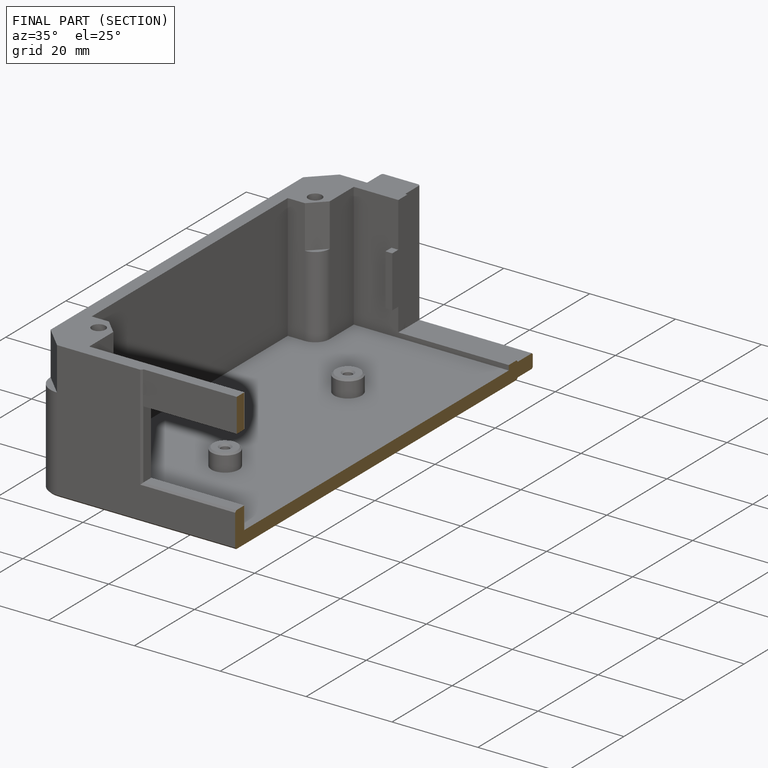
[diagram: finished part — half-section view (interior)]
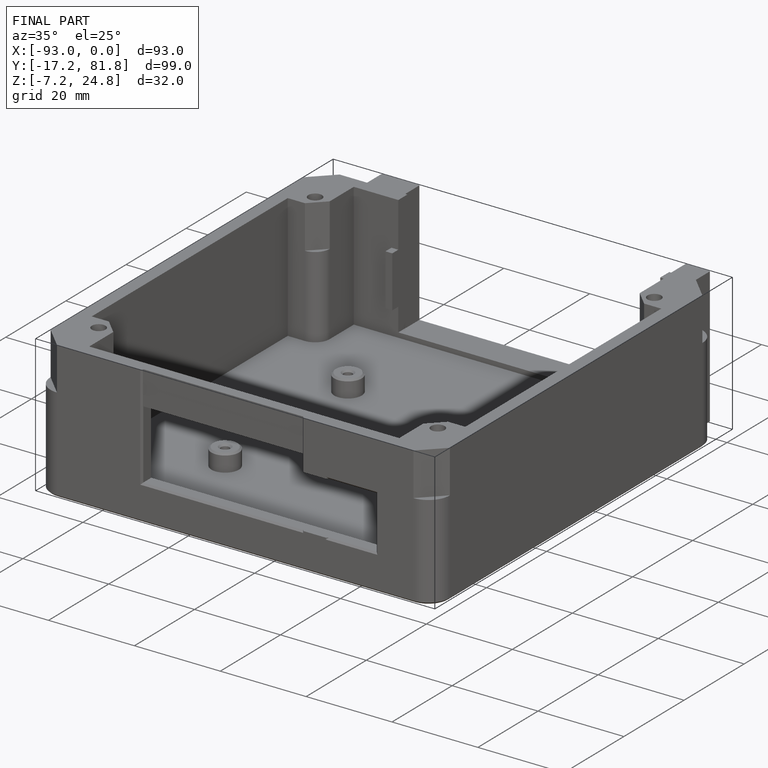
[diagram: finished part — iso view with bounding-box wireframe]
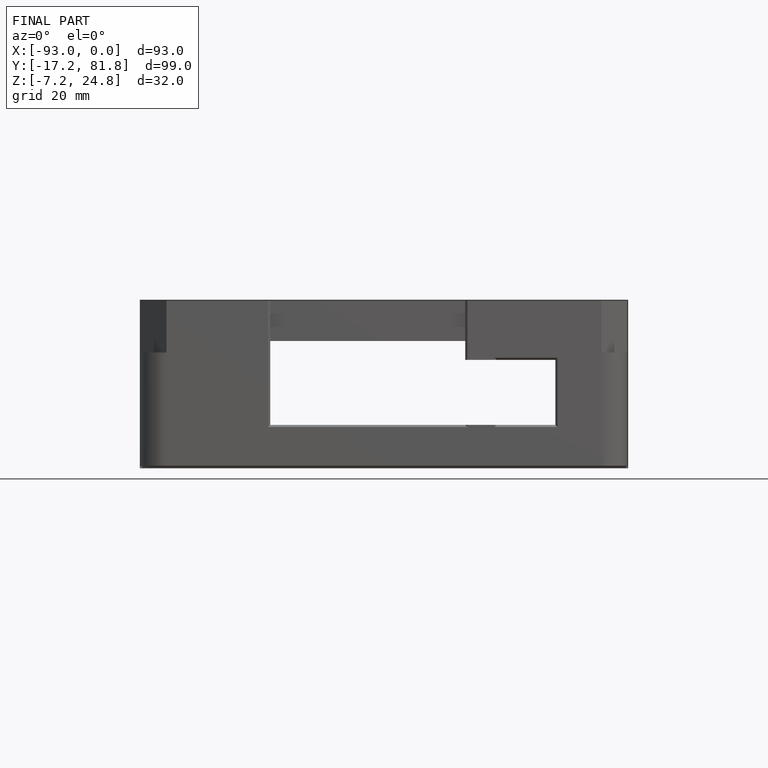
[diagram: finished part — front view with bounding-box wireframe]
